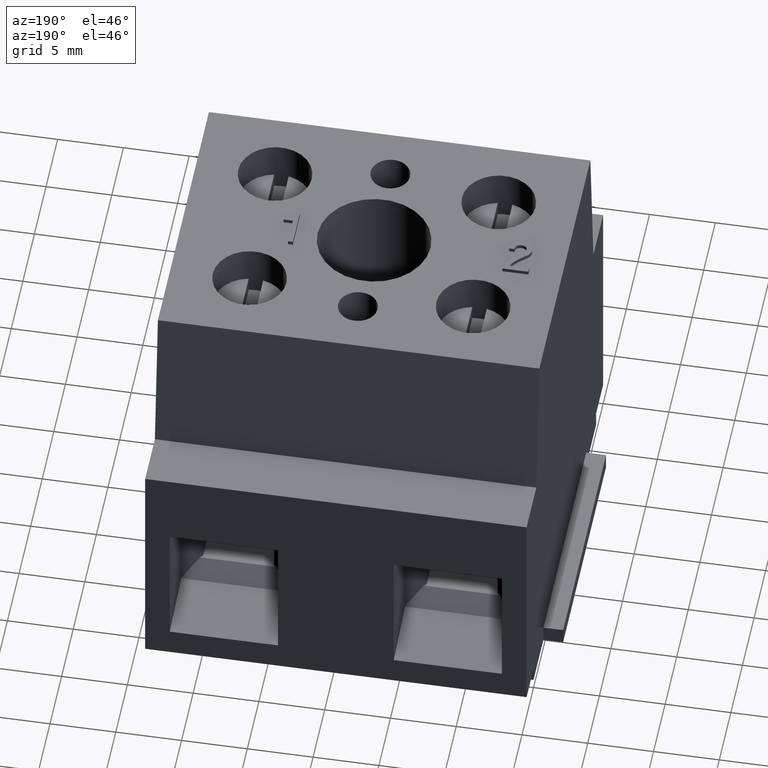
[diagram: clean part render]
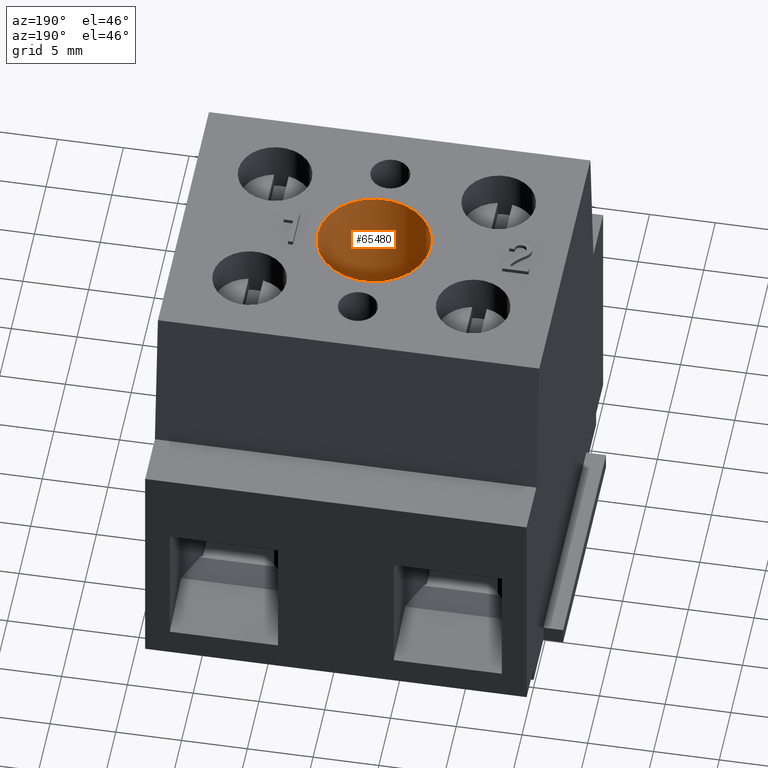
[diagram: same view with one face highlighted and labeled with its STEP entity id]
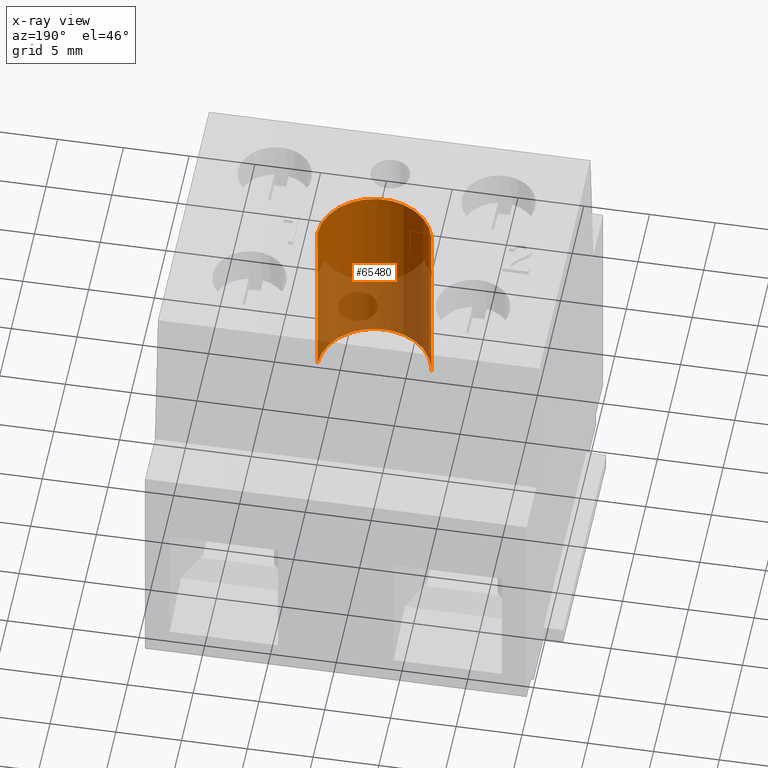
[diagram: x-ray of the same camera — body ghosted, the highlighted face saturated]
A machine part, auxiliary view. The second image highlights one B-rep face of the part: STEP entity #65480.
The next image is the same camera in x-ray: the body ghosted, the highlighted face saturated — about 49% of this face is hidden behind the body in this view.
In plain terms, the highlighted cylindrical surface (partial cylindrical patch) has radius 4.3 mm, axis along (-0, 0, 1).
Its self-contained STEP definition (entity closure, byte-faithful):
#440=CARTESIAN_POINT('',(70.7713182031141,-4.41587903044529,14.5));
#450=DIRECTION('',(1.,0.,0.));
#460=DIRECTION('',(0.,0.,1.));
#470=AXIS2_PLACEMENT_3D('',#440,#450,#460);
#480=CIRCLE('',#470,4.3);
#490=CARTESIAN_POINT('',(70.7713182031141,-4.41587903044529,18.8));
#500=VERTEX_POINT('',#490);
#510=CARTESIAN_POINT('',(70.7713182031141,-4.41587903044529,10.2));
#520=VERTEX_POINT('',#510);
#530=EDGE_CURVE('',#500,#520,#480,.T.);
#28950=CARTESIAN_POINT('',(56.7713182031141,-4.41587903044529,14.5));
#28960=DIRECTION('',(1.,0.,0.));
#28970=DIRECTION('',(0.,0.,1.));
#28980=AXIS2_PLACEMENT_3D('',#28950,#28960,#28970);
#28990=CIRCLE('',#28980,4.3);
#29000=CARTESIAN_POINT('',(56.7713182031141,-4.41587903044529,18.8));
#29010=VERTEX_POINT('',#29000);
#29020=CARTESIAN_POINT('',(56.7713182031141,-4.41587903044529,10.2));
#29030=VERTEX_POINT('',#29020);
#29040=EDGE_CURVE('',#29010,#29030,#28990,.T.);
#29280=CARTESIAN_POINT('',(70.0713182031141,-4.41587903044529,18.8));
#29290=DIRECTION('',(1.,0.,0.));
#29300=VECTOR('',#29290,1.);
#29310=LINE('',#29280,#29300);
#29320=EDGE_CURVE('',#29010,#500,#29310,.T.);
#29350=CARTESIAN_POINT('',(70.0713182031141,-4.41587903044529,10.2));
#29360=DIRECTION('',(1.,0.,0.));
#29370=VECTOR('',#29360,1.);
#29380=LINE('',#29350,#29370);
#29390=EDGE_CURVE('',#29030,#520,#29380,.T.);
#65370=CARTESIAN_POINT('',(70.0713182031141,-4.41587903044529,14.5));
#65380=DIRECTION('',(1.,0.,0.));
#65390=DIRECTION('',(0.,0.,1.));
#65400=AXIS2_PLACEMENT_3D('',#65370,#65380,#65390);
#65410=CYLINDRICAL_SURFACE('',#65400,4.3);
#65420=ORIENTED_EDGE('',*,*,#29040,.F.);
#65430=ORIENTED_EDGE('',*,*,#29390,.F.);
#65440=ORIENTED_EDGE('',*,*,#530,.T.);
#65450=ORIENTED_EDGE('',*,*,#29320,.T.);
#65460=EDGE_LOOP('',(#65450,#65440,#65430,#65420));
#65470=FACE_OUTER_BOUND('',#65460,.T.);
#65480=ADVANCED_FACE('',(#65470),#65410,.F.);